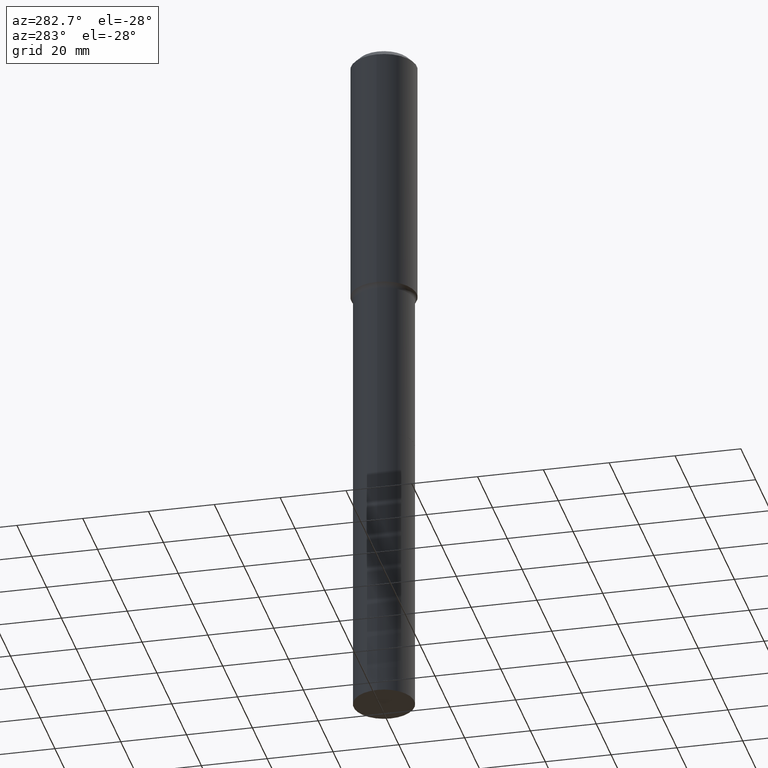
[diagram: clean part render]
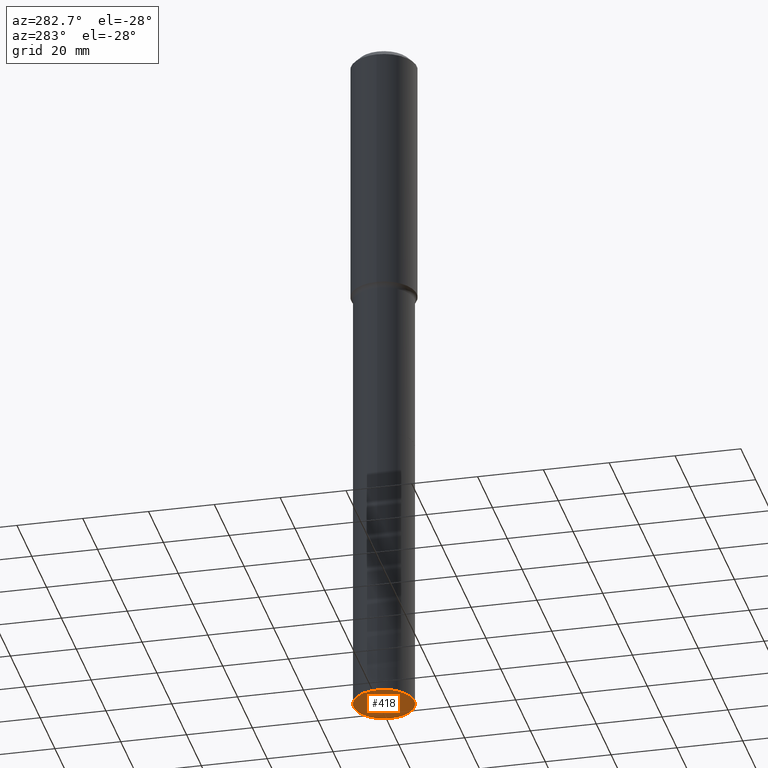
[diagram: same view with one face highlighted and labeled with its STEP entity id]
A machine part, auxiliary view. The second image highlights one B-rep face of the part: STEP entity #418.
In plain terms, the highlighted planar face has unit normal (0, -0, -1).
Its self-contained STEP definition (entity closure, byte-faithful):
#70 = CARTESIAN_POINT ( 'NONE',  ( 2.069991525683471225E-28, -2.955399294077169677E-14, -8.464600000000000790 ) ) ;
#85 = EDGE_CURVE ( 'NONE', #459, #210, #166, .T. ) ;
#161 = ORIENTED_EDGE ( 'NONE', *, *, #163, .F. ) ;
#163 = EDGE_CURVE ( 'NONE', #210, #459, #194, .T. ) ;
#166 = CIRCLE ( 'NONE', #464, 0.3641499999999999737 ) ;
#169 = DIRECTION ( 'NONE',  ( 1.000000000000000000, -6.982962677686263555E-15, 0.000000000000000000 ) ) ;
#191 = CARTESIAN_POINT ( 'NONE',  ( 2.069991525683471225E-28, -2.955399294077169677E-14, -8.464600000000000790 ) ) ;
#192 = DIRECTION ( 'NONE',  ( 1.000000000000000000, -6.982962677686263555E-15, 0.000000000000000000 ) ) ;
#194 = CIRCLE ( 'NONE', #209, 0.3641499999999999737 ) ;
#198 = ORIENTED_EDGE ( 'NONE', *, *, #85, .F. ) ;
#209 = AXIS2_PLACEMENT_3D ( 'NONE', #365, #240, #169 ) ;
#210 = VERTEX_POINT ( 'NONE', #417 ) ;
#231 = DIRECTION ( 'NONE',  ( -1.000000000000000000, 6.982962677686265922E-15, -4.876176775795935793E-29 ) ) ;
#240 = DIRECTION ( 'NONE',  ( -2.445468806185136597E-29, 3.491481338843145583E-15, 1.000000000000000000 ) ) ;
#243 = PLANE ( 'NONE',  #244 ) ;
#244 = AXIS2_PLACEMENT_3D ( 'NONE', #70, #310, #231 ) ;
#308 = DIRECTION ( 'NONE',  ( -2.445468806185136597E-29, 3.491481338843145583E-15, 1.000000000000000000 ) ) ;
#310 = DIRECTION ( 'NONE',  ( 2.438088387897960049E-29, -3.491481338843145188E-15, -1.000000000000000000 ) ) ;
#327 = EDGE_LOOP ( 'NONE', ( #198, #161 ) ) ;
#353 = FACE_OUTER_BOUND ( 'NONE', #327, .T. ) ;
#365 = CARTESIAN_POINT ( 'NONE',  ( 2.069991525683471225E-28, -2.955399294077169677E-14, -8.464600000000000790 ) ) ;
#417 = CARTESIAN_POINT ( 'NONE',  ( -0.3641499999999999737, -2.103277903313736248E-14, -8.464600000000000790 ) ) ;
#418 = ADVANCED_FACE ( 'NONE', ( #353 ), #243, .T. ) ;
#433 = CARTESIAN_POINT ( 'NONE',  ( 0.3641499999999999737, -3.209683879985114959E-14, -8.464600000000000790 ) ) ;
#459 = VERTEX_POINT ( 'NONE', #433 ) ;
#464 = AXIS2_PLACEMENT_3D ( 'NONE', #191, #308, #192 ) ;